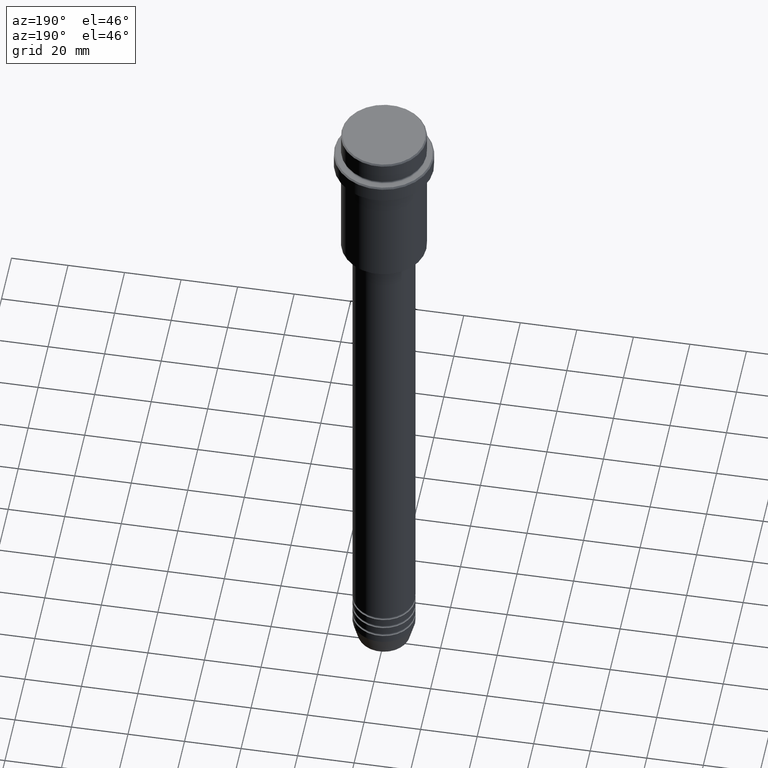
[diagram: clean part render]
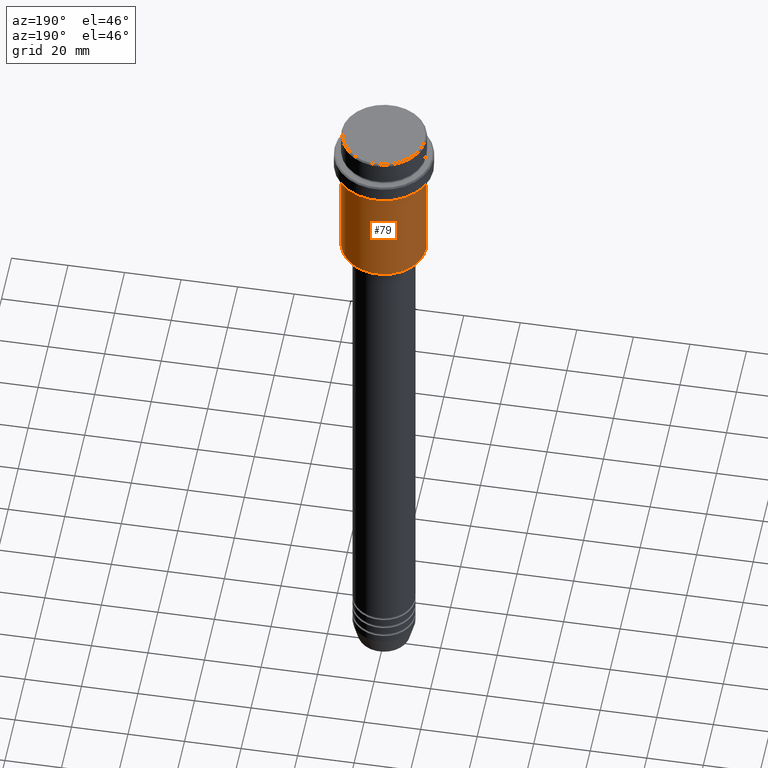
[diagram: same view with one face highlighted and labeled with its STEP entity id]
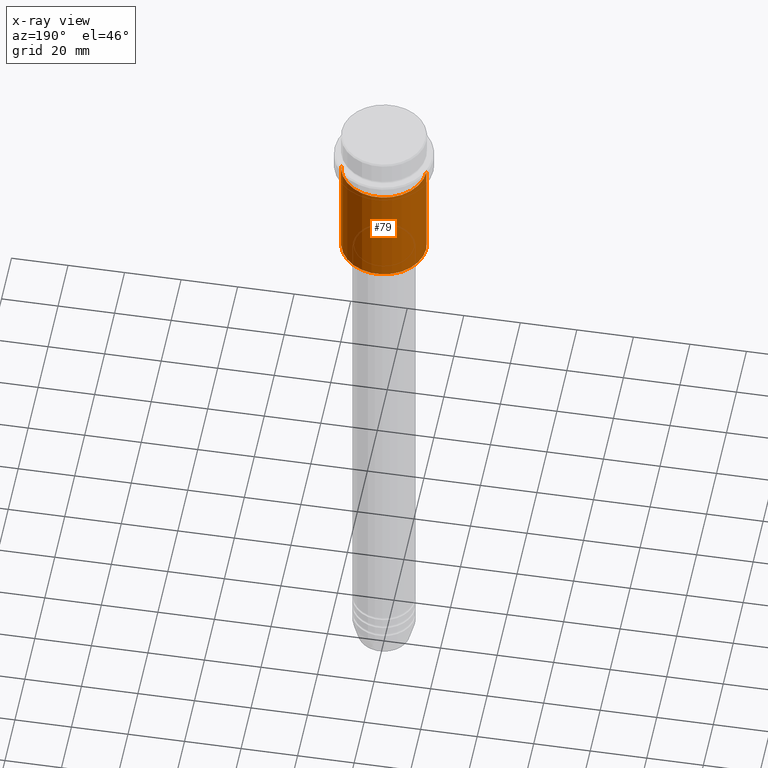
[diagram: x-ray of the same camera — body ghosted, the highlighted face saturated]
A machine part, auxiliary view. The second image highlights one B-rep face of the part: STEP entity #79.
The next image is the same camera in x-ray: the body ghosted, the highlighted face saturated — about 0% of this face is hidden behind the body in this view.
In plain terms, the highlighted cylindrical surface (partial cylindrical patch) has radius 15 mm, axis along (-0, -0, 1).
Its self-contained STEP definition (entity closure, byte-faithful):
#71 = ORIENTED_EDGE ( 'NONE', *, *, #689, .F. ) ;
#79 = ADVANCED_FACE ( 'NONE', ( #560 ), #879, .T. ) ;
#91 = CARTESIAN_POINT ( 'NONE',  ( -15.00000000000000000, 1.836970198721029589E-15, 0.000000000000000000 ) ) ;
#142 = LINE ( 'NONE', #250, #983 ) ;
#161 = VERTEX_POINT ( 'NONE', #1404 ) ;
#250 = CARTESIAN_POINT ( 'NONE',  ( 15.00000000000000000, 0.000000000000000000, 0.000000000000000000 ) ) ;
#316 = DIRECTION ( 'NONE',  ( 1.000000000000000000, 0.000000000000000000, 0.000000000000000000 ) ) ;
#347 = CARTESIAN_POINT ( 'NONE',  ( 0.000000000000000000, 0.000000000000000000, 0.000000000000000000 ) ) ;
#422 = CARTESIAN_POINT ( 'NONE',  ( 15.00000000000000000, 0.000000000000000000, -54.49999999999998579 ) ) ;
#478 = ORIENTED_EDGE ( 'NONE', *, *, #573, .T. ) ;
#521 = VERTEX_POINT ( 'NONE', #999 ) ;
#560 = FACE_OUTER_BOUND ( 'NONE', #1043, .T. ) ;
#573 = EDGE_CURVE ( 'NONE', #1097, #521, #1093, .T. ) ;
#644 = DIRECTION ( 'NONE',  ( -0.000000000000000000, -0.000000000000000000, 1.000000000000000000 ) ) ;
#664 = DIRECTION ( 'NONE',  ( -0.000000000000000000, -0.000000000000000000, 1.000000000000000000 ) ) ;
#689 = EDGE_CURVE ( 'NONE', #1269, #161, #142, .T. ) ;
#742 = ORIENTED_EDGE ( 'NONE', *, *, #1210, .T. ) ;
#744 = DIRECTION ( 'NONE',  ( -0.000000000000000000, -0.000000000000000000, 1.000000000000000000 ) ) ;
#821 = AXIS2_PLACEMENT_3D ( 'NONE', #1059, #644, #953 ) ;
#822 = AXIS2_PLACEMENT_3D ( 'NONE', #347, #664, #864 ) ;
#841 = AXIS2_PLACEMENT_3D ( 'NONE', #949, #744, #316 ) ;
#864 = DIRECTION ( 'NONE',  ( 1.000000000000000000, 0.000000000000000000, 0.000000000000000000 ) ) ;
#879 = CYLINDRICAL_SURFACE ( 'NONE', #822, 15.00000000000000000 ) ;
#949 = CARTESIAN_POINT ( 'NONE',  ( 0.000000000000000000, 0.000000000000000000, -16.00000000000000000 ) ) ;
#953 = DIRECTION ( 'NONE',  ( -1.000000000000000000, 0.000000000000000000, 0.000000000000000000 ) ) ;
#966 = DIRECTION ( 'NONE',  ( -0.000000000000000000, -0.000000000000000000, 1.000000000000000000 ) ) ;
#983 = VECTOR ( 'NONE', #1130, 1000.000000000000000 ) ;
#999 = CARTESIAN_POINT ( 'NONE',  ( -15.00000000000000355, 1.836970198721029983E-15, -16.00000000000000000 ) ) ;
#1006 = CIRCLE ( 'NONE', #841, 15.00000000000000178 ) ;
#1043 = EDGE_LOOP ( 'NONE', ( #742, #478, #1194, #71 ) ) ;
#1059 = CARTESIAN_POINT ( 'NONE',  ( 0.000000000000000000, 0.000000000000000000, -54.49999999999998579 ) ) ;
#1093 = LINE ( 'NONE', #91, #1374 ) ;
#1097 = VERTEX_POINT ( 'NONE', #1265 ) ;
#1130 = DIRECTION ( 'NONE',  ( -0.000000000000000000, -0.000000000000000000, 1.000000000000000000 ) ) ;
#1194 = ORIENTED_EDGE ( 'NONE', *, *, #1245, .F. ) ;
#1210 = EDGE_CURVE ( 'NONE', #1269, #1097, #1271, .T. ) ;
#1245 = EDGE_CURVE ( 'NONE', #161, #521, #1006, .T. ) ;
#1265 = CARTESIAN_POINT ( 'NONE',  ( -15.00000000000000000, 1.836970198721029589E-15, -54.49999999999998579 ) ) ;
#1269 = VERTEX_POINT ( 'NONE', #422 ) ;
#1271 = CIRCLE ( 'NONE', #821, 15.00000000000000000 ) ;
#1374 = VECTOR ( 'NONE', #966, 1000.000000000000000 ) ;
#1404 = CARTESIAN_POINT ( 'NONE',  ( 15.00000000000000178, 0.000000000000000000, -16.00000000000000000 ) ) ;